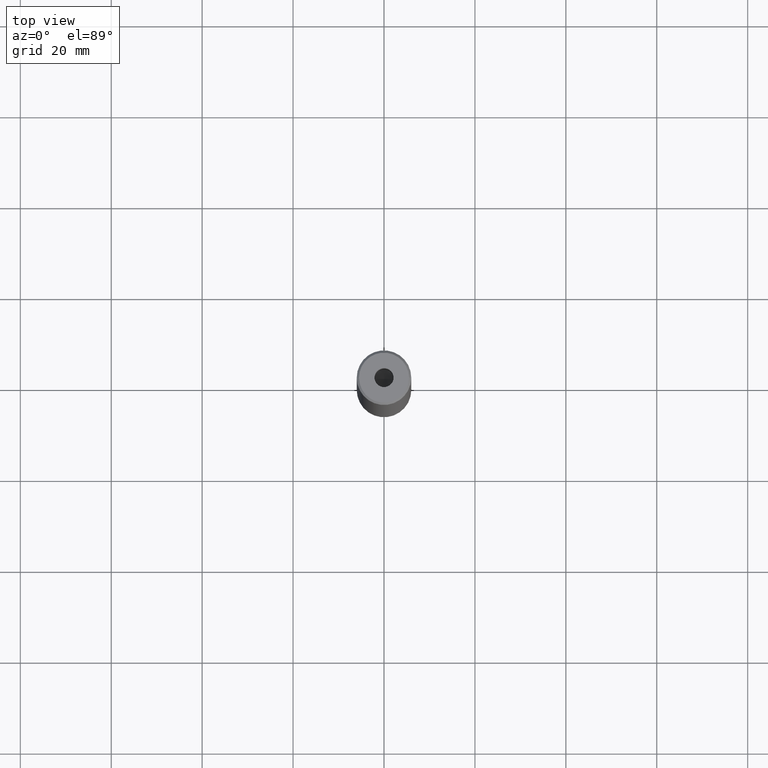
[diagram: clean part render]
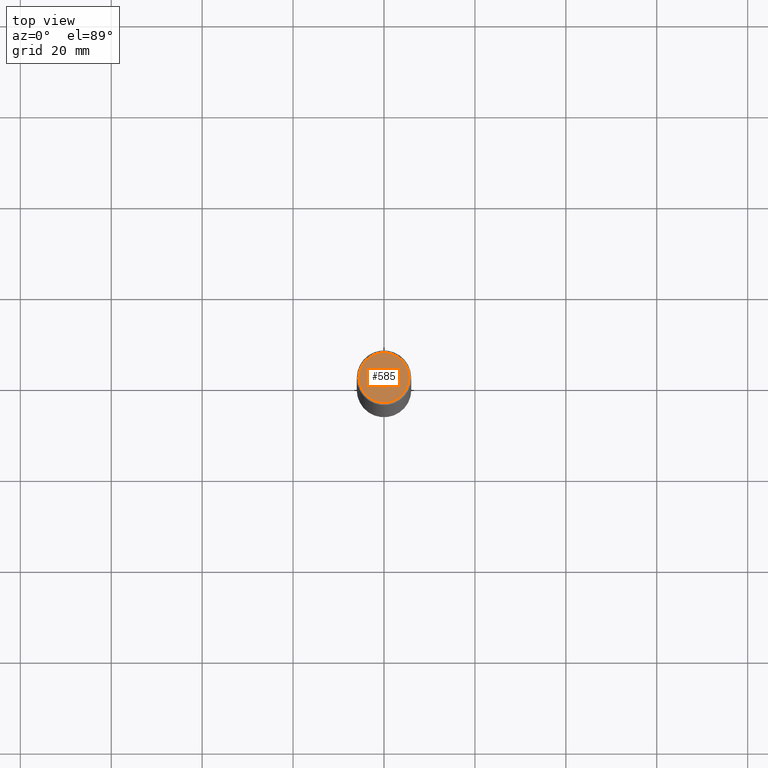
[diagram: same view with one face highlighted and labeled with its STEP entity id]
A machine part, top view. The second image highlights one B-rep face of the part: STEP entity #585.
In plain terms, the highlighted planar face has unit normal (0, -0, 1).
Its self-contained STEP definition (entity closure, byte-faithful):
#13 = CIRCLE ( 'NONE', #428, 2.099999999999998757 ) ;
#26 = EDGE_LOOP ( 'NONE', ( #254, #87 ) ) ;
#27 = VERTEX_POINT ( 'NONE', #501 ) ;
#36 = CARTESIAN_POINT ( 'NONE',  ( 0.000000000000000000, 0.000000000000000000, 0.000000000000000000 ) ) ;
#42 = AXIS2_PLACEMENT_3D ( 'NONE', #460, #370, #59 ) ;
#59 = DIRECTION ( 'NONE',  ( 1.000000000000000000, 0.000000000000000000, 0.000000000000000000 ) ) ;
#81 = FACE_BOUND ( 'NONE', #26, .T. ) ;
#87 = ORIENTED_EDGE ( 'NONE', *, *, #251, .F. ) ;
#93 = CARTESIAN_POINT ( 'NONE',  ( 2.099999999999998757, 0.000000000000000000, -1.990051048614449116E-16 ) ) ;
#95 = VERTEX_POINT ( 'NONE', #93 ) ;
#98 = FACE_OUTER_BOUND ( 'NONE', #128, .T. ) ;
#100 = VERTEX_POINT ( 'NONE', #584 ) ;
#127 = DIRECTION ( 'NONE',  ( 1.000000000000000000, 0.000000000000000000, 0.000000000000000000 ) ) ;
#128 = EDGE_LOOP ( 'NONE', ( #504, #247 ) ) ;
#152 = DIRECTION ( 'NONE',  ( -0.000000000000000000, -0.000000000000000000, 1.000000000000000000 ) ) ;
#175 = AXIS2_PLACEMENT_3D ( 'NONE', #397, #212, #218 ) ;
#176 = DIRECTION ( 'NONE',  ( -0.000000000000000000, -0.000000000000000000, 1.000000000000000000 ) ) ;
#212 = DIRECTION ( 'NONE',  ( -0.000000000000000000, -0.000000000000000000, 1.000000000000000000 ) ) ;
#218 = DIRECTION ( 'NONE',  ( 1.000000000000000000, 0.000000000000000000, 0.000000000000000000 ) ) ;
#247 = ORIENTED_EDGE ( 'NONE', *, *, #272, .T. ) ;
#251 = EDGE_CURVE ( 'NONE', #398, #95, #281, .T. ) ;
#254 = ORIENTED_EDGE ( 'NONE', *, *, #540, .F. ) ;
#261 = DIRECTION ( 'NONE',  ( -0.000000000000000000, -0.000000000000000000, 1.000000000000000000 ) ) ;
#272 = EDGE_CURVE ( 'NONE', #27, #100, #359, .T. ) ;
#281 = CIRCLE ( 'NONE', #175, 2.099999999999998757 ) ;
#337 = DIRECTION ( 'NONE',  ( 1.000000000000000000, 0.000000000000000000, 0.000000000000000000 ) ) ;
#342 = CIRCLE ( 'NONE', #489, 5.500000000000017764 ) ;
#347 = CARTESIAN_POINT ( 'NONE',  ( -2.099999999999998757, 2.571758278209439985E-16, -1.990051048614449116E-16 ) ) ;
#359 = CIRCLE ( 'NONE', #427, 5.500000000000017764 ) ;
#370 = DIRECTION ( 'NONE',  ( 0.000000000000000000, -0.000000000000000000, 1.000000000000000000 ) ) ;
#397 = CARTESIAN_POINT ( 'NONE',  ( 0.000000000000000000, 0.000000000000000000, -1.990051048614449116E-16 ) ) ;
#398 = VERTEX_POINT ( 'NONE', #347 ) ;
#402 = EDGE_CURVE ( 'NONE', #100, #27, #342, .T. ) ;
#427 = AXIS2_PLACEMENT_3D ( 'NONE', #535, #261, #583 ) ;
#428 = AXIS2_PLACEMENT_3D ( 'NONE', #554, #152, #337 ) ;
#460 = CARTESIAN_POINT ( 'NONE',  ( 0.000000000000000000, 0.000000000000000000, 0.000000000000000000 ) ) ;
#489 = AXIS2_PLACEMENT_3D ( 'NONE', #36, #176, #127 ) ;
#501 = CARTESIAN_POINT ( 'NONE',  ( 5.500000000000017764, 7.041719095097292713E-16, 0.000000000000000000 ) ) ;
#504 = ORIENTED_EDGE ( 'NONE', *, *, #402, .T. ) ;
#535 = CARTESIAN_POINT ( 'NONE',  ( 0.000000000000000000, 0.000000000000000000, 0.000000000000000000 ) ) ;
#540 = EDGE_CURVE ( 'NONE', #95, #398, #13, .T. ) ;
#554 = CARTESIAN_POINT ( 'NONE',  ( 0.000000000000000000, 0.000000000000000000, -1.990051048614449116E-16 ) ) ;
#579 = PLANE ( 'NONE',  #42 ) ;
#583 = DIRECTION ( 'NONE',  ( 1.000000000000000000, 0.000000000000000000, 0.000000000000000000 ) ) ;
#584 = CARTESIAN_POINT ( 'NONE',  ( -5.500000000000017764, 0.000000000000000000, 0.000000000000000000 ) ) ;
#585 = ADVANCED_FACE ( 'NONE', ( #81, #98 ), #579, .T. ) ;